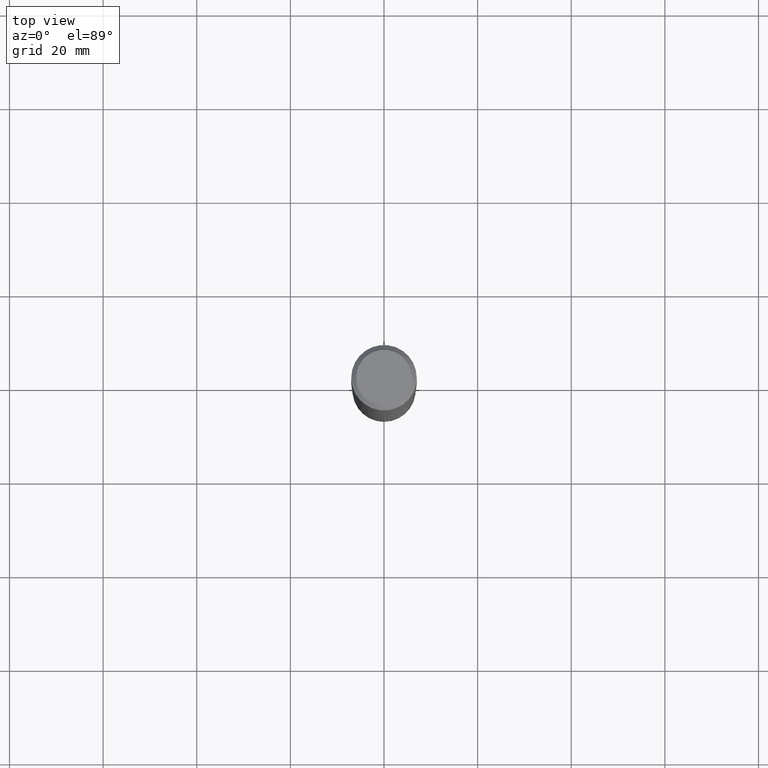
[diagram: clean part render]
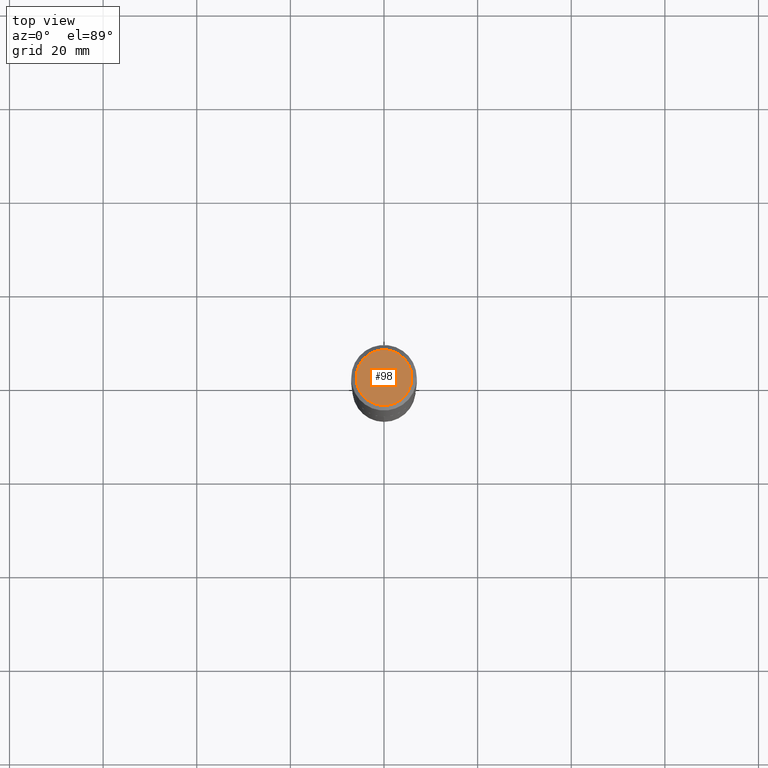
[diagram: same view with one face highlighted and labeled with its STEP entity id]
A machine part, top view. The second image highlights one B-rep face of the part: STEP entity #98.
In plain terms, the highlighted planar face has unit normal (0, -0, -1).
Its self-contained STEP definition (entity closure, byte-faithful):
#7 = DIRECTION ( 'NONE',  ( -1.000000000000000000, 6.982962677686265922E-15, -4.876176775795935793E-29 ) ) ;
#18 = DIRECTION ( 'NONE',  ( 1.000000000000000000, -6.982962677686267499E-15, 4.876157962347795834E-29 ) ) ;
#26 = AXIS2_PLACEMENT_3D ( 'NONE', #445, #365, #7 ) ;
#30 = VERTEX_POINT ( 'NONE', #217 ) ;
#31 = AXIS2_PLACEMENT_3D ( 'NONE', #455, #135, #277 ) ;
#34 = ORIENTED_EDGE ( 'NONE', *, *, #209, .T. ) ;
#86 = CIRCLE ( 'NONE', #402, 0.2342600000000000238 ) ;
#98 = ADVANCED_FACE ( 'NONE', ( #152 ), #182, .F. ) ;
#135 = DIRECTION ( 'NONE',  ( -2.445468806185136597E-29, 3.491481338843145583E-15, 1.000000000000000000 ) ) ;
#152 = FACE_OUTER_BOUND ( 'NONE', #170, .T. ) ;
#170 = EDGE_LOOP ( 'NONE', ( #34, #198 ) ) ;
#182 = PLANE ( 'NONE',  #26 ) ;
#193 = CARTESIAN_POINT ( 'NONE',  ( -0.2342600000000000238, 1.707997756148671759E-15, 4.101342130332794026E-18 ) ) ;
#198 = ORIENTED_EDGE ( 'NONE', *, *, #238, .T. ) ;
#209 = EDGE_CURVE ( 'NONE', #390, #30, #86, .T. ) ;
#217 = CARTESIAN_POINT ( 'NONE',  ( 0.2342600000000000238, -1.821115673845785155E-15, 4.101342130356573868E-18 ) ) ;
#238 = EDGE_CURVE ( 'NONE', #30, #390, #412, .T. ) ;
#277 = DIRECTION ( 'NONE',  ( 1.000000000000000000, -6.982962677686267499E-15, 4.876157962347795834E-29 ) ) ;
#314 = CARTESIAN_POINT ( 'NONE',  ( -1.002970424325033577E-46, 1.431975951230896486E-32, 4.101342130344485961E-18 ) ) ;
#346 = DIRECTION ( 'NONE',  ( -2.445468806185136597E-29, 3.491481338843145583E-15, 1.000000000000000000 ) ) ;
#365 = DIRECTION ( 'NONE',  ( 2.438088387897960049E-29, -3.491481338843145188E-15, -1.000000000000000000 ) ) ;
#390 = VERTEX_POINT ( 'NONE', #193 ) ;
#402 = AXIS2_PLACEMENT_3D ( 'NONE', #314, #346, #18 ) ;
#412 = CIRCLE ( 'NONE', #31, 0.2342600000000000238 ) ;
#445 = CARTESIAN_POINT ( 'NONE',  ( -5.014852121625167883E-47, 7.159879756154482429E-33, 2.050671065172242981E-18 ) ) ;
#455 = CARTESIAN_POINT ( 'NONE',  ( -1.002970424325033577E-46, 1.431975951230896486E-32, 4.101342130344485961E-18 ) ) ;